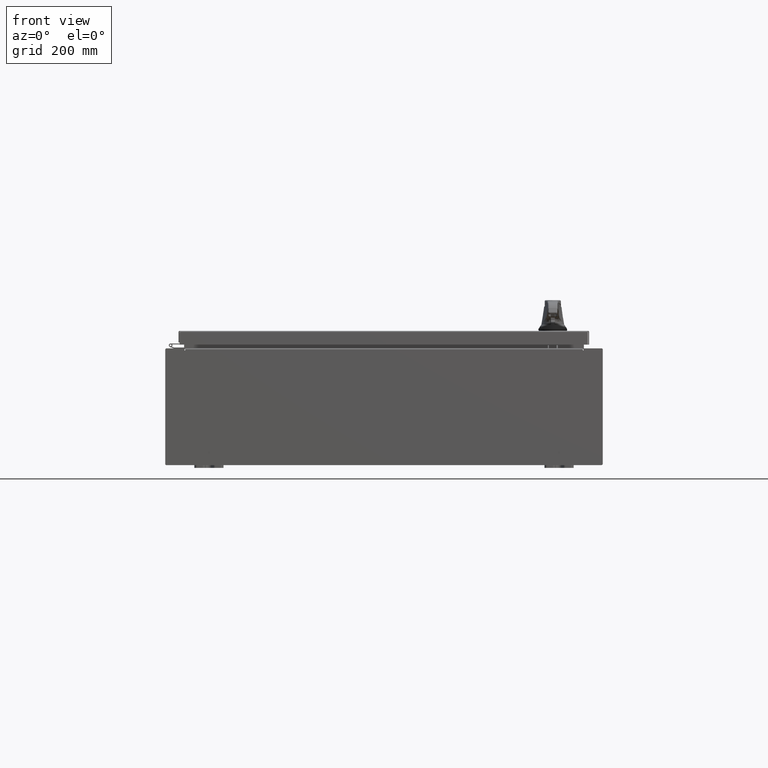
[diagram: clean part render]
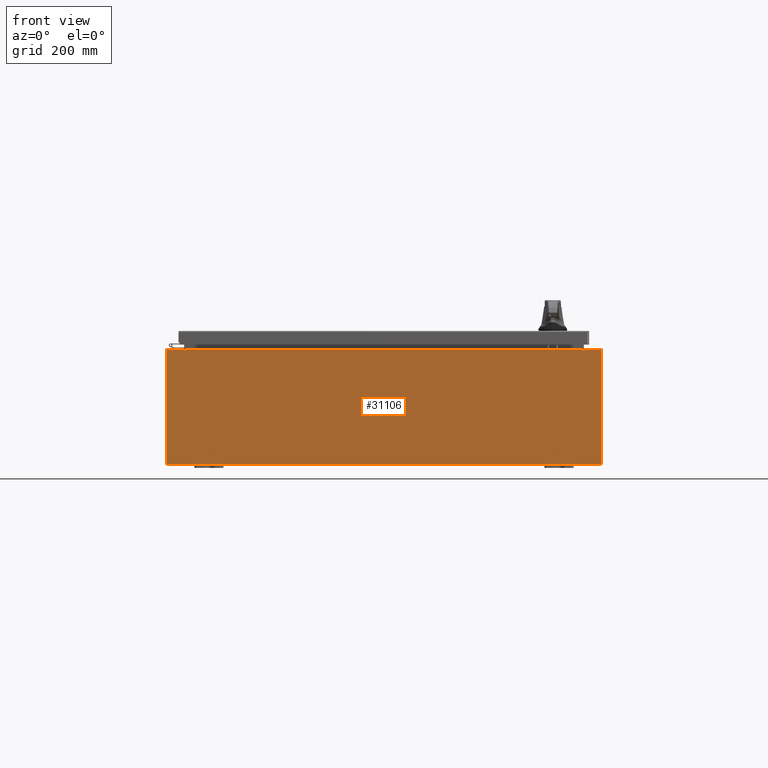
[diagram: same view with one face highlighted and labeled with its STEP entity id]
A machine part, front view. The second image highlights one B-rep face of the part: STEP entity #31106.
In plain terms, the highlighted planar face has unit normal (-0, 1, -0).
Its self-contained STEP definition (entity closure, byte-faithful):
#563 = ORIENTED_EDGE ( 'NONE', *, *, #1388, .F. ) ;
#1226 = CARTESIAN_POINT ( 'NONE',  ( 14.92530000000000200, 0.0000000000000000000, 3.925299999999999600 ) ) ;
#1388 = EDGE_CURVE ( 'NONE', #15474, #92880, #9169, .T. ) ;
#1625 = DIRECTION ( 'NONE',  ( -0.0000000000000000000, 1.000000000000000000, -0.0000000000000000000 ) ) ;
#2201 = DIRECTION ( 'NONE',  ( 0.0000000000000000000, -0.0000000000000000000, -1.000000000000000000 ) ) ;
#4092 = ORIENTED_EDGE ( 'NONE', *, *, #17718, .F. ) ;
#4291 = EDGE_CURVE ( 'NONE', #69073, #86368, #54033, .T. ) ;
#4917 = VECTOR ( 'NONE', #117649, 39.37007874015748100 ) ;
#5601 = CARTESIAN_POINT ( 'NONE',  ( 13.63720000000000400, 0.0000000000000000000, 3.874949999999999700 ) ) ;
#7353 = LINE ( 'NONE', #118547, #105441 ) ;
#7920 = VERTEX_POINT ( 'NONE', #10948 ) ;
#9169 = LINE ( 'NONE', #114723, #84904 ) ;
#10948 = CARTESIAN_POINT ( 'NONE',  ( -14.92529999999999800, 0.0000000000000000000, 3.925299999999999600 ) ) ;
#13209 = CARTESIAN_POINT ( 'NONE',  ( -13.63719999999999600, 1.024442997624098700E-016, 3.912299999999999700 ) ) ;
#15474 = VERTEX_POINT ( 'NONE', #13209 ) ;
#15527 = LINE ( 'NONE', #24512, #107626 ) ;
#16124 = CARTESIAN_POINT ( 'NONE',  ( -14.92529999999999800, 0.0000000000000000000, 3.925299999999999600 ) ) ;
#16924 = LINE ( 'NONE', #21910, #86744 ) ;
#17068 = LINE ( 'NONE', #74406, #39367 ) ;
#17562 = DIRECTION ( 'NONE',  ( -0.0000000000000000000, -0.0000000000000000000, 1.000000000000000000 ) ) ;
#17718 = EDGE_CURVE ( 'NONE', #58598, #46777, #27196, .T. ) ;
#19097 = CARTESIAN_POINT ( 'NONE',  ( -13.63719999999999800, 1.024442997624098700E-016, 3.912299999999999700 ) ) ;
#20850 = PLANE ( 'NONE',  #99214 ) ;
#21910 = CARTESIAN_POINT ( 'NONE',  ( 13.63720000000000400, 0.0000000000000000000, 0.0000000000000000000 ) ) ;
#21948 = CARTESIAN_POINT ( 'NONE',  ( 13.65587500000000200, 0.0000000000000000000, 3.874949999999999700 ) ) ;
#22143 = CIRCLE ( 'NONE', #95674, 0.01867499999999949400 ) ;
#24512 = CARTESIAN_POINT ( 'NONE',  ( -14.92529999999999800, 0.0000000000000000000, 3.925299999999999600 ) ) ;
#25681 = DIRECTION ( 'NONE',  ( 1.000000000000000000, 0.0000000000000000000, 0.0000000000000000000 ) ) ;
#27196 = LINE ( 'NONE', #32165, #4917 ) ;
#30419 = CARTESIAN_POINT ( 'NONE',  ( 0.0000000000000000000, 0.0000000000000000000, 0.0000000000000000000 ) ) ;
#31106 = ADVANCED_FACE ( 'NONE', ( #89716 ), #20850, .F. ) ;
#31507 = DIRECTION ( 'NONE',  ( 0.0000000000000000000, 0.0000000000000000000, -1.000000000000000000 ) ) ;
#32165 = CARTESIAN_POINT ( 'NONE',  ( 13.67454999999983300, -0.0000000000000000000, -5.935537951421816200E-013 ) ) ;
#33173 = CARTESIAN_POINT ( 'NONE',  ( 13.67455000000000400, 0.0000000000000000000, 3.925299999999999600 ) ) ;
#35980 = EDGE_CURVE ( 'NONE', #58598, #56304, #99632, .T. ) ;
#38573 = LINE ( 'NONE', #19097, #86094 ) ;
#39367 = VECTOR ( 'NONE', #17562, 39.37007874015748100 ) ;
#41232 = CARTESIAN_POINT ( 'NONE',  ( -13.67454999999999500, 0.0000000000000000000, 3.925299999999999600 ) ) ;
#43013 = DIRECTION ( 'NONE',  ( -1.000000000000000000, -0.0000000000000000000, -0.0000000000000000000 ) ) ;
#46256 = ORIENTED_EDGE ( 'NONE', *, *, #35980, .T. ) ;
#46777 = VERTEX_POINT ( 'NONE', #78610 ) ;
#49134 = VECTOR ( 'NONE', #25681, 39.37007874015748100 ) ;
#49416 = EDGE_CURVE ( 'NONE', #15474, #59820, #38573, .T. ) ;
#49633 = EDGE_CURVE ( 'NONE', #46777, #68496, #51871, .T. ) ;
#49759 = EDGE_CURVE ( 'NONE', #56304, #108932, #93451, .T. ) ;
#50779 = CARTESIAN_POINT ( 'NONE',  ( 13.63720000000000400, 0.0000000000000000000, 3.912299999999999700 ) ) ;
#51871 = CIRCLE ( 'NONE', #90358, 0.01867499999999949400 ) ;
#54033 = LINE ( 'NONE', #55828, #98583 ) ;
#54161 = EDGE_CURVE ( 'NONE', #68496, #59820, #16924, .T. ) ;
#55828 = CARTESIAN_POINT ( 'NONE',  ( -13.67454999999999500, -0.0000000000000000000, 0.0000000000000000000 ) ) ;
#56304 = VERTEX_POINT ( 'NONE', #1226 ) ;
#58428 = CARTESIAN_POINT ( 'NONE',  ( -13.65587499999999600, 0.0000000000000000000, 3.874949999999999700 ) ) ;
#58598 = VERTEX_POINT ( 'NONE', #33173 ) ;
#58677 = DIRECTION ( 'NONE',  ( 0.0000000000000000000, 0.0000000000000000000, 1.000000000000000000 ) ) ;
#59007 = DIRECTION ( 'NONE',  ( 0.0000000000000000000, -1.000000000000000000, 0.0000000000000000000 ) ) ;
#59820 = VERTEX_POINT ( 'NONE', #50779 ) ;
#60794 = CARTESIAN_POINT ( 'NONE',  ( 14.92530000000000200, 0.0000000000000000000, 3.925299999999999600 ) ) ;
#64311 = DIRECTION ( 'NONE',  ( 0.0000000000000000000, 0.0000000000000000000, -1.000000000000000000 ) ) ;
#65345 = ORIENTED_EDGE ( 'NONE', *, *, #101495, .T. ) ;
#67939 = ORIENTED_EDGE ( 'NONE', *, *, #49633, .F. ) ;
#67961 = DIRECTION ( 'NONE',  ( 0.0000000000000000000, 0.0000000000000000000, -1.000000000000000000 ) ) ;
#68496 = VERTEX_POINT ( 'NONE', #5601 ) ;
#69073 = VERTEX_POINT ( 'NONE', #70207 ) ;
#70207 = CARTESIAN_POINT ( 'NONE',  ( -13.67454999999999500, 0.0000000000000000000, 3.874949999999999700 ) ) ;
#72012 = EDGE_LOOP ( 'NONE', ( #122464, #98544, #563, #82610, #111307, #67939, #4092, #46256, #121326, #81177, #109960, #65345 ) ) ;
#72506 = EDGE_CURVE ( 'NONE', #92880, #69073, #22143, .T. ) ;
#74406 = CARTESIAN_POINT ( 'NONE',  ( -14.92529999999999800, 0.0000000000000000000, 3.925299999999999600 ) ) ;
#78610 = CARTESIAN_POINT ( 'NONE',  ( 13.67455000000000200, 0.0000000000000000000, 3.874949999999999700 ) ) ;
#78784 = EDGE_CURVE ( 'NONE', #108932, #87568, #7353, .T. ) ;
#81177 = ORIENTED_EDGE ( 'NONE', *, *, #78784, .T. ) ;
#82610 = ORIENTED_EDGE ( 'NONE', *, *, #49416, .T. ) ;
#84904 = VECTOR ( 'NONE', #64311, 39.37007874015748100 ) ;
#86094 = VECTOR ( 'NONE', #95067, 39.37007874015748100 ) ;
#86368 = VERTEX_POINT ( 'NONE', #41232 ) ;
#86744 = VECTOR ( 'NONE', #116955, 39.37007874015748100 ) ;
#87568 = VERTEX_POINT ( 'NONE', #118133 ) ;
#88380 = DIRECTION ( 'NONE',  ( -0.0000000000000000000, 1.000000000000000000, -0.0000000000000000000 ) ) ;
#88502 = CARTESIAN_POINT ( 'NONE',  ( -13.63719999999999600, -0.0000000000000000000, 3.874949999999999700 ) ) ;
#89716 = FACE_OUTER_BOUND ( 'NONE', #72012, .T. ) ;
#90358 = AXIS2_PLACEMENT_3D ( 'NONE', #21948, #88380, #31507 ) ;
#90478 = VECTOR ( 'NONE', #117685, 39.37007874015748100 ) ;
#92880 = VERTEX_POINT ( 'NONE', #88502 ) ;
#93451 = LINE ( 'NONE', #60794, #90478 ) ;
#95067 = DIRECTION ( 'NONE',  ( 1.000000000000000000, 0.0000000000000000000, 0.0000000000000000000 ) ) ;
#95674 = AXIS2_PLACEMENT_3D ( 'NONE', #58428, #1625, #67961 ) ;
#98544 = ORIENTED_EDGE ( 'NONE', *, *, #72506, .F. ) ;
#98583 = VECTOR ( 'NONE', #58677, 39.37007874015748100 ) ;
#99214 = AXIS2_PLACEMENT_3D ( 'NONE', #30419, #59007, #2201 ) ;
#99632 = LINE ( 'NONE', #16124, #49134 ) ;
#100994 = EDGE_CURVE ( 'NONE', #87568, #7920, #17068, .T. ) ;
#101495 = EDGE_CURVE ( 'NONE', #7920, #86368, #15527, .T. ) ;
#101806 = CARTESIAN_POINT ( 'NONE',  ( 14.92530000000000200, 0.0000000000000000000, -3.925299999999999600 ) ) ;
#105441 = VECTOR ( 'NONE', #43013, 39.37007874015748100 ) ;
#107626 = VECTOR ( 'NONE', #110045, 39.37007874015748100 ) ;
#108932 = VERTEX_POINT ( 'NONE', #101806 ) ;
#109960 = ORIENTED_EDGE ( 'NONE', *, *, #100994, .T. ) ;
#110045 = DIRECTION ( 'NONE',  ( 1.000000000000000000, 0.0000000000000000000, 0.0000000000000000000 ) ) ;
#111307 = ORIENTED_EDGE ( 'NONE', *, *, #54161, .F. ) ;
#114723 = CARTESIAN_POINT ( 'NONE',  ( -13.63719999999999600, -0.0000000000000000000, 0.0000000000000000000 ) ) ;
#116955 = DIRECTION ( 'NONE',  ( 0.0000000000000000000, 0.0000000000000000000, 1.000000000000000000 ) ) ;
#117649 = DIRECTION ( 'NONE',  ( -4.340572780400004900E-014, 0.0000000000000000000, -1.000000000000000000 ) ) ;
#117685 = DIRECTION ( 'NONE',  ( 0.0000000000000000000, 0.0000000000000000000, -1.000000000000000000 ) ) ;
#118133 = CARTESIAN_POINT ( 'NONE',  ( -14.92529999999999800, 0.0000000000000000000, -3.925299999999999600 ) ) ;
#118547 = CARTESIAN_POINT ( 'NONE',  ( -14.92529999999999800, 0.0000000000000000000, -3.925299999999999600 ) ) ;
#121326 = ORIENTED_EDGE ( 'NONE', *, *, #49759, .T. ) ;
#122464 = ORIENTED_EDGE ( 'NONE', *, *, #4291, .F. ) ;